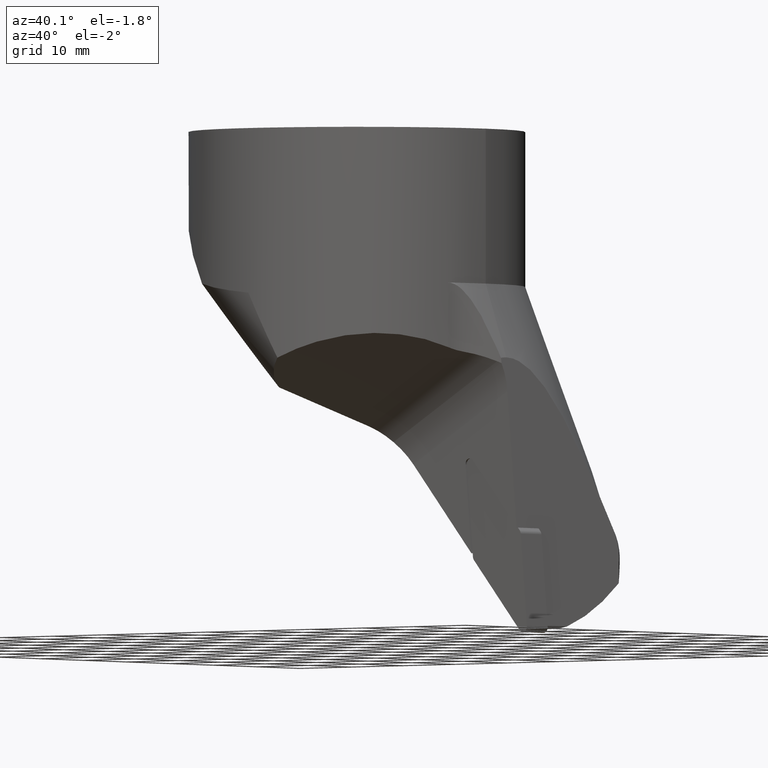
[diagram: clean part render]
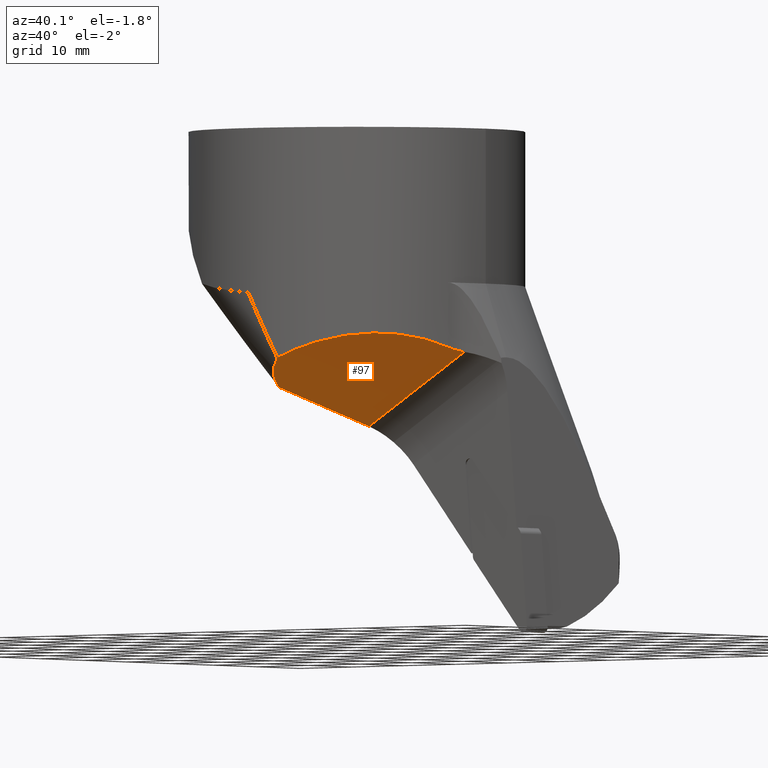
[diagram: same view with one face highlighted and labeled with its STEP entity id]
A machine part, auxiliary view. The second image highlights one B-rep face of the part: STEP entity #97.
In plain terms, the highlighted planar face has unit normal (-0.4532, 0.4226, 0.7849).
Its self-contained STEP definition (entity closure, byte-faithful):
#97=ADVANCED_FACE('',(#152),#153,.F.);
#152=FACE_OUTER_BOUND('',#288,.T.);
#153=PLANE('',#289);
#288=EDGE_LOOP('',(#491,#492,#493,#494,#495));
#289=AXIS2_PLACEMENT_3D('',#496,#497,#498);
#491=ORIENTED_EDGE('',*,*,#625,.T.);
#492=ORIENTED_EDGE('',*,*,#654,.T.);
#493=ORIENTED_EDGE('',*,*,#644,.T.);
#494=ORIENTED_EDGE('',*,*,#655,.T.);
#495=ORIENTED_EDGE('',*,*,#656,.T.);
#496=CARTESIAN_POINT('',(12.5024516874184,-13.8285333418636,-35.6712639192933));
#497=DIRECTION('',(-0.453153893518324,0.422618261740699,0.784885567221396));
#498=DIRECTION('',(0.866025403784439,0.0,0.499999999999999));
#625=EDGE_CURVE('',#753,#751,#754,.T.);
#644=EDGE_CURVE('',#785,#783,#786,.T.);
#654=EDGE_CURVE('',#751,#785,#801,.T.);
#655=EDGE_CURVE('',#783,#802,#803,.T.);
#656=EDGE_CURVE('',#802,#753,#804,.T.);
#751=VERTEX_POINT('',#956);
#753=VERTEX_POINT('',#963);
#754=LINE('',#964,#965);
#783=VERTEX_POINT('',#1063);
#785=VERTEX_POINT('',#1065);
#786=ELLIPSE('',#1066,31.8517769265443,25.0);
#801=ELLIPSE('',#1124,12.7407107706177,10.0);
#802=VERTEX_POINT('',#1125);
#803=ELLIPSE('',#1126,11.4230087749231,10.0);
#804=LINE('',#1127,#1128);
#956=CARTESIAN_POINT('',(24.9994284034372,-4.91905390607443,-33.253401974625));
#963=CARTESIAN_POINT('',(6.48429040913743,-4.91905390607444,-43.9431218797171));
#964=CARTESIAN_POINT('',(6.48429040913743,-4.91905390607444,-43.9431218797171));
#965=VECTOR('',#1223,21.3794398101841);
#1063=CARTESIAN_POINT('',(5.16460796689821,-24.4607200333161,-34.1829147192976));
#1065=CARTESIAN_POINT('',(23.9076188990759,-7.30929261806842,-32.5967447200507));
#1066=AXIS2_PLACEMENT_3D('',#1256,#1257,#1258);
#1124=AXIS2_PLACEMENT_3D('',#1272,#1273,#1274);
#1125=CARTESIAN_POINT('',(1.85265378729142,-20.1366444159524,-38.4233522960412));
#1126=AXIS2_PLACEMENT_3D('',#1275,#1276,#1277);
#1127=CARTESIAN_POINT('',(1.85265378729142,-20.1366444159524,-38.4233522960412));
#1128=VECTOR('',#1278,16.8373090183683);
#1223=DIRECTION('',(0.866025403784437,4.9332998561145E-016,0.500000000000002));
#1256=CARTESIAN_POINT('',(-1.776357E-013,-7.067237E-015,-50.3354721360225));
#1257=DIRECTION('',(0.453153893518324,-0.422618261740698,-0.784885567221397));
#1258=DIRECTION('',(0.574000268109811,-0.535321441605246,0.619640739757761));
#1272=CARTESIAN_POINT('',(33.4706664587063,-10.2330096652958,-25.501253753662));
#1273=DIRECTION('',(-0.453153893518325,0.422618261740699,0.784885567221396));
#1274=DIRECTION('',(-0.574000268109807,0.535321441605249,-0.619640739757763));
#1275=CARTESIAN_POINT('',(11.2986416868017,-15.0,-35.7355127578412));
#1276=DIRECTION('',(0.453153893518325,-0.422618261740699,-0.784885567221396));
#1277=DIRECTION('',(-0.64219045828175,-0.765427810446802,0.0413724822374832));
#1278=DIRECTION('',(0.275081761390328,0.903801818525553,-0.327829677394067));